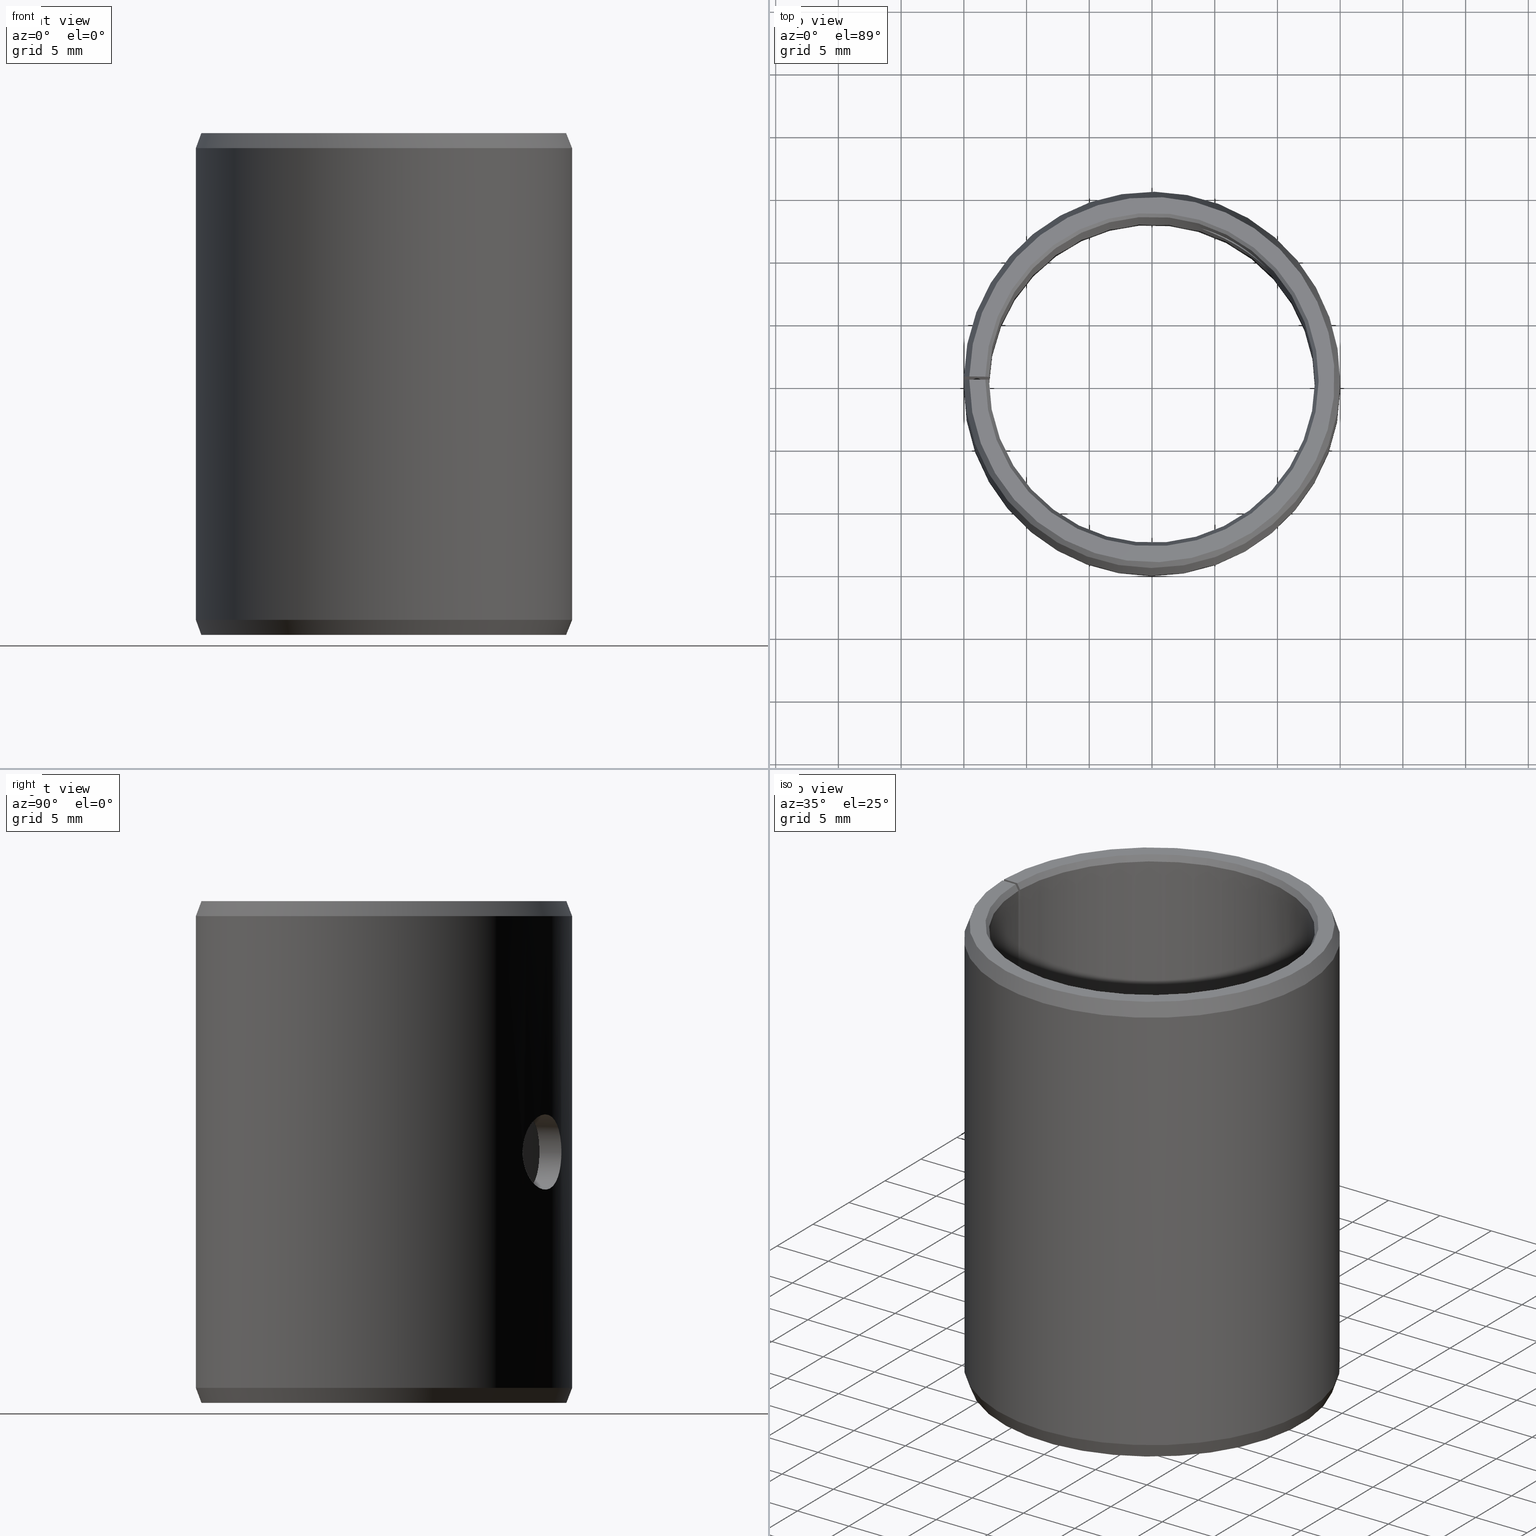
[diagram: canonical four-view strip — front | top / right | iso, engineering-drawing reading convention]
A machine part, canonical four-view strip (front | top / right | iso — engineering-drawing reading convention). The complete STEP part file that produces these views, byte-faithful:
ISO-10303-21;
HEADER;
FILE_DESCRIPTION(('STEP AP203'),'1');
FILE_NAME('440-POM2640LMB.stp','2016-09-20T23:04:43',(' '),(' '),'Spatial InterOp 3D',' ',' ');
FILE_SCHEMA(('CONFIG_CONTROL_DESIGN'));
ENDSEC;
DATA;
#1=DESIGN_CONTEXT('',#51,'design');
#2=APPLICATION_PROTOCOL_DEFINITION('INTERNATIONAL STANDARD','config_control_design',1994,#51);
#3=PRODUCT_CATEGORY_RELATIONSHIP('NONE','NONE',#52,#53);
#4=DATE_AND_TIME(#54,#55);
#5=DATE_TIME_ROLE('creation_date');
#6=DATE_TIME_ROLE('classification_date');
#7=PERSON_AND_ORGANIZATION_ROLE('creator');
#8=PERSON_AND_ORGANIZATION_ROLE('design_supplier');
#9=PERSON_AND_ORGANIZATION_ROLE('classification_officer');
#10=PERSON_AND_ORGANIZATION_ROLE('design_owner');
#11=APPROVAL_PERSON_ORGANIZATION(#56,#57,#58);
#12=APPROVAL_DATE_TIME(#4,#57);
#13=CC_DESIGN_APPROVAL(#57,(#59,#60,#61));
#14=CC_DESIGN_DATE_AND_TIME_ASSIGNMENT(#4,#5,(#61));
#15=CC_DESIGN_DATE_AND_TIME_ASSIGNMENT(#4,#6,(#59));
#16=CC_DESIGN_PERSON_AND_ORGANIZATION_ASSIGNMENT(#56,#10,(#62));
#17=CC_DESIGN_PERSON_AND_ORGANIZATION_ASSIGNMENT(#56,#7,(#61));
#18=CC_DESIGN_PERSON_AND_ORGANIZATION_ASSIGNMENT(#56,#7,(#60));
#19=CC_DESIGN_PERSON_AND_ORGANIZATION_ASSIGNMENT(#56,#8,(#60));
#20=CC_DESIGN_SECURITY_CLASSIFICATION(#59,(#60));
#21=CC_DESIGN_PERSON_AND_ORGANIZATION_ASSIGNMENT(#56,#9,(#59));
#22=SHAPE_DEFINITION_REPRESENTATION(#63,#64);
#23=DESIGN_CONTEXT('',#65,'design');
#24=APPLICATION_PROTOCOL_DEFINITION('INTERNATIONAL STANDARD','config_control_design',1994,#65);
#25=PRODUCT_CATEGORY_RELATIONSHIP('NONE','NONE',#66,#67);
#26=DATE_AND_TIME(#68,#69);
#27=DATE_TIME_ROLE('creation_date');
#28=DATE_TIME_ROLE('classification_date');
#29=PERSON_AND_ORGANIZATION_ROLE('creator');
#30=PERSON_AND_ORGANIZATION_ROLE('design_supplier');
#31=PERSON_AND_ORGANIZATION_ROLE('classification_officer');
#32=PERSON_AND_ORGANIZATION_ROLE('design_owner');
#33=APPROVAL_PERSON_ORGANIZATION(#70,#71,#72);
#34=APPROVAL_DATE_TIME(#26,#71);
#35=CC_DESIGN_APPROVAL(#71,(#73,#74,#75));
#36=CC_DESIGN_DATE_AND_TIME_ASSIGNMENT(#26,#27,(#75));
#37=CC_DESIGN_DATE_AND_TIME_ASSIGNMENT(#26,#28,(#73));
#38=CC_DESIGN_PERSON_AND_ORGANIZATION_ASSIGNMENT(#70,#32,(#76));
#39=CC_DESIGN_PERSON_AND_ORGANIZATION_ASSIGNMENT(#70,#29,(#75));
#40=CC_DESIGN_PERSON_AND_ORGANIZATION_ASSIGNMENT(#70,#29,(#74));
#41=CC_DESIGN_PERSON_AND_ORGANIZATION_ASSIGNMENT(#70,#30,(#74));
#42=CC_DESIGN_SECURITY_CLASSIFICATION(#73,(#74));
#43=CC_DESIGN_PERSON_AND_ORGANIZATION_ASSIGNMENT(#70,#31,(#73));
#44=CONTEXT_DEPENDENT_SHAPE_REPRESENTATION(#77,#78);
#45=SHAPE_DEFINITION_REPRESENTATION(#79,#80);
#46=SHAPE_REPRESENTATION_RELATIONSHIP('NONE','NONE',#80,#81);
#47= (GEOMETRIC_REPRESENTATION_CONTEXT(3)GLOBAL_UNCERTAINTY_ASSIGNED_CONTEXT((#84))GLOBAL_UNIT_ASSIGNED_CONTEXT((#86,#87,#88))REPRESENTATION_CONTEXT('NONE','WORKSPACE'));
#51=APPLICATION_CONTEXT('CONFIGURATION CONTROLLED 3D DESIGNS OF MECHANICAL PARTS AND ASSEMBLIES');
#52=PRODUCT_CATEGORY('part','NONE');
#53=PRODUCT_RELATED_PRODUCT_CATEGORY('detail',' ',(#62));
#54=CALENDAR_DATE(2016,21,8);
#55=LOCAL_TIME(1,4,43.0,#90);
#56=PERSON_AND_ORGANIZATION(#91,#92);
#57=APPROVAL(#93,'SOLID MODEL');
#58=APPROVAL_ROLE('APPROVED');
#59=SECURITY_CLASSIFICATION('','',#94);
#60=PRODUCT_DEFINITION_FORMATION_WITH_SPECIFIED_SOURCE(' ','NONE',#62,.NOT_KNOWN.);
#61=PRODUCT_DEFINITION('NONE','NONE',#60,#1);
#62=PRODUCT('','','PART--DESC',(#95));
#63=PRODUCT_DEFINITION_SHAPE('NONE','NONE',#61);
#64=SHAPE_REPRESENTATION('',(#96,#97),#98);
#65=APPLICATION_CONTEXT('CONFIGURATION CONTROLLED 3D DESIGNS OF MECHANICAL PARTS AND ASSEMBLIES');
#66=PRODUCT_CATEGORY('part','NONE');
#67=PRODUCT_RELATED_PRODUCT_CATEGORY('detail',' ',(#76));
#68=CALENDAR_DATE(2016,21,8);
#69=LOCAL_TIME(1,4,43.0,#99);
#70=PERSON_AND_ORGANIZATION(#100,#101);
#71=APPROVAL(#102,'SOLID MODEL');
#72=APPROVAL_ROLE('APPROVED');
#73=SECURITY_CLASSIFICATION('','',#103);
#74=PRODUCT_DEFINITION_FORMATION_WITH_SPECIFIED_SOURCE(' ','NONE',#76,.NOT_KNOWN.);
#75=PRODUCT_DEFINITION('440-POM2640LMB','440-POM2640LMB',#74,#23);
#76=PRODUCT('440-POM2640LMB','440-POM2640LMB','PART-440-POM2640LMB-DESC',(#104));
#77=(REPRESENTATION_RELATIONSHIP('','',#80,#64)REPRESENTATION_RELATIONSHIP_WITH_TRANSFORMATION(#107)SHAPE_REPRESENTATION_RELATIONSHIP());
#78=PRODUCT_DEFINITION_SHAPE('NAUO-PROD-DEF','NAUO-PROD-DEF',#109);
#79=PRODUCT_DEFINITION_SHAPE('NONE','NONE',#75);
#80=SHAPE_REPRESENTATION('440-POM2640LMB',(#96),#98);
#81=ADVANCED_BREP_SHAPE_REPRESENTATION('',(#110),#47);
#84=UNCERTAINTY_MEASURE_WITH_UNIT(LENGTH_MEASURE(1.0E-006),#86,'','');
#86= (CONVERSION_BASED_UNIT('METRE',#113)LENGTH_UNIT()NAMED_UNIT(#116));
#87= (NAMED_UNIT(#118)PLANE_ANGLE_UNIT()SI_UNIT($,.RADIAN.));
#88= (NAMED_UNIT(#118)SOLID_ANGLE_UNIT()SI_UNIT($,.STERADIAN.));
#90=COORDINATED_UNIVERSAL_TIME_OFFSET(1,0,.AHEAD.);
#91=PERSON('','UNSPECIFIED',$,$,$,$);
#92=ORGANIZATION('UNSPECIFIED','UNSPECIFIED','UNSPECIFIED');
#93=APPROVAL_STATUS('approved');
#94=SECURITY_CLASSIFICATION_LEVEL('unclassified');
#95=MECHANICAL_CONTEXT('',#51,'mechanical');
#96=AXIS2_PLACEMENT_3D('',#124,#125,#126);
#97=AXIS2_PLACEMENT_3D('',#127,#128,#129);
#98= (GEOMETRIC_REPRESENTATION_CONTEXT(3)GLOBAL_UNCERTAINTY_ASSIGNED_CONTEXT((#132))GLOBAL_UNIT_ASSIGNED_CONTEXT((#134,#135,#136))REPRESENTATION_CONTEXT('NONE','WORKSPACE'));
#99=COORDINATED_UNIVERSAL_TIME_OFFSET(1,0,.AHEAD.);
#100=PERSON('','UNSPECIFIED',$,$,$,$);
#101=ORGANIZATION('UNSPECIFIED','UNSPECIFIED','UNSPECIFIED');
#102=APPROVAL_STATUS('approved');
#103=SECURITY_CLASSIFICATION_LEVEL('unclassified');
#104=MECHANICAL_CONTEXT('',#65,'mechanical');
#107=ITEM_DEFINED_TRANSFORMATION('','',#96,#97);
#109=NEXT_ASSEMBLY_USAGE_OCCURRENCE('440-POM2640LMB','440-POM2640LMB','440-POM2640LMB',#61,#75,$);
#110=MANIFOLD_SOLID_BREP('',#138);
#113=LENGTH_MEASURE_WITH_UNIT(LENGTH_MEASURE(1.0),#139);
#116=DIMENSIONAL_EXPONENTS(1.0,0.0,0.0,0.0,0.0,0.0,0.0);
#118=DIMENSIONAL_EXPONENTS(0.0,0.0,0.0,0.0,0.0,0.0,0.0);
#124=CARTESIAN_POINT('',(0.0,0.0,0.0));
#125=DIRECTION('',(0.0,0.0,1.0));
#126=DIRECTION('',(1.0,0.0,0.0));
#127=CARTESIAN_POINT('',(0.0,0.0,0.0));
#128=DIRECTION('',(5.48707263966374E-016,-5.48707263966376E-016,1.0));
#129=DIRECTION('',(1.39349996950756E-015,1.0,5.48707263966375E-016));
#132=UNCERTAINTY_MEASURE_WITH_UNIT(LENGTH_MEASURE(1.0E-006),#134,'','');
#134= (CONVERSION_BASED_UNIT('METRE',#142)LENGTH_UNIT()NAMED_UNIT(#145));
#135= (NAMED_UNIT(#147)PLANE_ANGLE_UNIT()SI_UNIT($,.RADIAN.));
#136= (NAMED_UNIT(#147)SOLID_ANGLE_UNIT()SI_UNIT($,.STERADIAN.));
#138=CLOSED_SHELL('',(#153,#154,#155,#156,#157,#158,#159,#160,#161,#162,#163));
#139= (NAMED_UNIT(#116)LENGTH_UNIT()SI_UNIT($,.METRE.));
#142=LENGTH_MEASURE_WITH_UNIT(LENGTH_MEASURE(1.0),#165);
#145=DIMENSIONAL_EXPONENTS(1.0,0.0,0.0,0.0,0.0,0.0,0.0);
#147=DIMENSIONAL_EXPONENTS(0.0,0.0,0.0,0.0,0.0,0.0,0.0);
#153=ADVANCED_FACE('',(#166),#167,.F.);
#154=ADVANCED_FACE('',(#168),#169,.T.);
#155=ADVANCED_FACE('',(#170),#171,.T.);
#156=ADVANCED_FACE('',(#172),#173,.T.);
#157=ADVANCED_FACE('',(#174),#175,.T.);
#158=ADVANCED_FACE('',(#176),#177,.F.);
#159=ADVANCED_FACE('',(#178),#179,.T.);
#160=ADVANCED_FACE('',(#180),#181,.F.);
#161=ADVANCED_FACE('',(#182,#183),#184,.F.);
#162=ADVANCED_FACE('',(#185,#186),#187,.T.);
#163=ADVANCED_FACE('',(#188,#189),#190,.F.);
#165= (NAMED_UNIT(#145)LENGTH_UNIT()SI_UNIT($,.METRE.));
#166=FACE_OUTER_BOUND('',#192,.T.);
#167=CONICAL_SURFACE('',#193,0.013,0.523598775598298);
#168=FACE_OUTER_BOUND('',#194,.T.);
#169=PLANE('',#195);
#170=FACE_OUTER_BOUND('',#196,.T.);
#171=CONICAL_SURFACE('',#197,0.0145632357188806,0.349065850398869);
#172=FACE_OUTER_BOUND('',#198,.T.);
#173=CONICAL_SURFACE('',#199,0.015,0.349065850398866);
#174=FACE_OUTER_BOUND('',#200,.T.);
#175=PLANE('',#201);
#176=FACE_OUTER_BOUND('',#202,.T.);
#177=CONICAL_SURFACE('',#203,0.0132886751345948,0.523598775598298);
#178=FACE_OUTER_BOUND('',#204,.T.);
#179=PLANE('',#205);
#180=FACE_OUTER_BOUND('',#206,.T.);
#181=PLANE('',#207);
#182=FACE_OUTER_BOUND('',#208,.T.);
#183=FACE_BOUND('',#209,.T.);
#184=CYLINDRICAL_SURFACE('',#210,0.013);
#185=FACE_OUTER_BOUND('',#211,.T.);
#186=FACE_BOUND('',#212,.T.);
#187=CYLINDRICAL_SURFACE('',#213,0.015);
#188=FACE_OUTER_BOUND('',#214,.T.);
#189=FACE_OUTER_BOUND('',#215,.T.);
#190=CYLINDRICAL_SURFACE('',#216,0.003);
#192=EDGE_LOOP('',(#217,#218,#219,#220));
#193=AXIS2_PLACEMENT_3D('',#221,#222,#223);
#194=EDGE_LOOP('',(#224,#225,#226,#227));
#195=AXIS2_PLACEMENT_3D('',#228,#229,#230);
#196=EDGE_LOOP('',(#231,#232,#233,#234));
#197=AXIS2_PLACEMENT_3D('',#235,#236,#237);
#198=EDGE_LOOP('',(#238,#239,#240,#241));
#199=AXIS2_PLACEMENT_3D('',#242,#243,#244);
#200=EDGE_LOOP('',(#245,#246,#247,#248));
#201=AXIS2_PLACEMENT_3D('',#249,#250,#251);
#202=EDGE_LOOP('',(#252,#253,#254,#255));
#203=AXIS2_PLACEMENT_3D('',#256,#257,#258);
#204=EDGE_LOOP('',(#259,#260,#261,#262,#263,#264,#265,#266));
#205=AXIS2_PLACEMENT_3D('',#267,#268,#269);
#206=EDGE_LOOP('',(#270,#271,#272,#273,#274,#275,#276,#277));
#207=AXIS2_PLACEMENT_3D('',#278,#279,#280);
#208=EDGE_LOOP('',(#281,#282,#283,#284));
#209=EDGE_LOOP('',(#285));
#210=AXIS2_PLACEMENT_3D('',#286,#287,#288);
#211=EDGE_LOOP('',(#289,#290,#291,#292));
#212=EDGE_LOOP('',(#293));
#213=AXIS2_PLACEMENT_3D('',#294,#295,#296);
#214=EDGE_LOOP('',(#297));
#215=EDGE_LOOP('',(#298));
#216=AXIS2_PLACEMENT_3D('',#299,#300,#301);
#217=ORIENTED_EDGE('',*,*,#302,.T.);
#218=ORIENTED_EDGE('',*,*,#303,.F.);
#219=ORIENTED_EDGE('',*,*,#304,.F.);
#220=ORIENTED_EDGE('',*,*,#305,.T.);
#221=CARTESIAN_POINT('',(-6.93889390390723E-018,-6.93889390390723E-018,0.0005));
#222=DIRECTION('',(6.12323399573677E-017,-0.0,-1.0));
#223=DIRECTION('',(-1.0,0.0,-6.12323399573677E-017));
#224=ORIENTED_EDGE('',*,*,#306,.T.);
#225=ORIENTED_EDGE('',*,*,#307,.F.);
#226=ORIENTED_EDGE('',*,*,#302,.F.);
#227=ORIENTED_EDGE('',*,*,#308,.T.);
#228=CARTESIAN_POINT('',(0.000231919359461966,0.0132866512050067,-4.00091435630047E-020));
#229=DIRECTION('',(6.12323399573677E-017,0.0,-1.0));
#230=DIRECTION('',(-1.0,0.0,-6.12323399573677E-017));
#231=ORIENTED_EDGE('',*,*,#309,.T.);
#232=ORIENTED_EDGE('',*,*,#310,.F.);
#233=ORIENTED_EDGE('',*,*,#306,.F.);
#234=ORIENTED_EDGE('',*,*,#311,.T.);
#235=CARTESIAN_POINT('',(-6.93889390390723E-018,-6.93889390390723E-018,-9.02779661431517E-036));
#236=DIRECTION('',(-6.12323399573677E-017,0.0,1.0));
#237=DIRECTION('',(1.0,0.0,6.12323399573677E-017));
#238=ORIENTED_EDGE('',*,*,#312,.T.);
#239=ORIENTED_EDGE('',*,*,#313,.F.);
#240=ORIENTED_EDGE('',*,*,#314,.F.);
#241=ORIENTED_EDGE('',*,*,#315,.T.);
#242=CARTESIAN_POINT('',(-8.67361737988404E-018,-6.93889390390723E-018,0.0388));
#243=DIRECTION('',(6.12323399573677E-017,-0.0,-1.0));
#244=DIRECTION('',(-1.0,0.0,-6.12323399573677E-017));
#245=ORIENTED_EDGE('',*,*,#316,.T.);
#246=ORIENTED_EDGE('',*,*,#317,.T.);
#247=ORIENTED_EDGE('',*,*,#318,.F.);
#248=ORIENTED_EDGE('',*,*,#312,.F.);
#249=CARTESIAN_POINT('',(0.00025416350880786,0.0145610176675419,0.04));
#250=DIRECTION('',(-6.12323399573677E-017,0.0,1.0));
#251=DIRECTION('',(1.0,0.0,6.12323399573677E-017));
#252=ORIENTED_EDGE('',*,*,#319,.T.);
#253=ORIENTED_EDGE('',*,*,#320,.F.);
#254=ORIENTED_EDGE('',*,*,#317,.F.);
#255=ORIENTED_EDGE('',*,*,#321,.T.);
#256=CARTESIAN_POINT('',(-8.67361737988404E-018,-6.93889390390723E-018,0.04));
#257=DIRECTION('',(-6.12323399573677E-017,0.0,1.0));
#258=DIRECTION('',(1.0,0.0,6.12323399573677E-017));
#259=ORIENTED_EDGE('',*,*,#320,.T.);
#260=ORIENTED_EDGE('',*,*,#322,.T.);
#261=ORIENTED_EDGE('',*,*,#303,.T.);
#262=ORIENTED_EDGE('',*,*,#307,.T.);
#263=ORIENTED_EDGE('',*,*,#310,.T.);
#264=ORIENTED_EDGE('',*,*,#323,.T.);
#265=ORIENTED_EDGE('',*,*,#313,.T.);
#266=ORIENTED_EDGE('',*,*,#318,.T.);
#267=CARTESIAN_POINT('',(-6.93889390390723E-018,-0.014,0.0));
#268=DIRECTION('',(1.0,0.0,0.0));
#269=DIRECTION('',(0.0,0.0,-1.0));
#270=ORIENTED_EDGE('',*,*,#321,.F.);
#271=ORIENTED_EDGE('',*,*,#316,.F.);
#272=ORIENTED_EDGE('',*,*,#315,.F.);
#273=ORIENTED_EDGE('',*,*,#324,.F.);
#274=ORIENTED_EDGE('',*,*,#311,.F.);
#275=ORIENTED_EDGE('',*,*,#308,.F.);
#276=ORIENTED_EDGE('',*,*,#305,.F.);
#277=ORIENTED_EDGE('',*,*,#325,.F.);
#278=CARTESIAN_POINT('',(-0.000244333690121977,-0.0139978677321895,-1.49611235765866E-020));
#279=DIRECTION('',(0.999847695156391,-0.0174524064372836,-9.3259819610035E-021));
#280=DIRECTION('',(9.32598196100733E-021,1.0686516840419E-018,-1.0));
#281=ORIENTED_EDGE('',*,*,#304,.T.);
#282=ORIENTED_EDGE('',*,*,#322,.F.);
#283=ORIENTED_EDGE('',*,*,#319,.F.);
#284=ORIENTED_EDGE('',*,*,#325,.T.);
#285=ORIENTED_EDGE('',*,*,#326,.T.);
#286=CARTESIAN_POINT('',(-6.93889390390723E-018,-6.93889390390723E-018,0.0));
#287=DIRECTION('',(6.12323399573677E-017,0.0,-1.0));
#288=DIRECTION('',(-1.0,0.0,-6.12323399573677E-017));
#289=ORIENTED_EDGE('',*,*,#314,.T.);
#290=ORIENTED_EDGE('',*,*,#323,.F.);
#291=ORIENTED_EDGE('',*,*,#309,.F.);
#292=ORIENTED_EDGE('',*,*,#324,.T.);
#293=ORIENTED_EDGE('',*,*,#327,.T.);
#294=CARTESIAN_POINT('',(-6.93889390390723E-018,-6.93889390390723E-018,0.0));
#295=DIRECTION('',(6.12323399573677E-017,0.0,-1.0));
#296=DIRECTION('',(-1.0,0.0,-6.12323399573677E-017));
#297=ORIENTED_EDGE('',*,*,#326,.F.);
#298=ORIENTED_EDGE('',*,*,#327,.F.);
#299=CARTESIAN_POINT('',(0.0085716730070391,-0.00515038074907059,0.02));
#300=DIRECTION('',(0.85716730070391,-0.515038074907062,0.0));
#301=DIRECTION('',(-0.515038074907062,-0.85716730070391,0.0));
#302=EDGE_CURVE('',#328,#329,#330,.T.);
#303=EDGE_CURVE('',#331,#329,#332,.T.);
#304=EDGE_CURVE('',#333,#331,#334,.T.);
#305=EDGE_CURVE('',#333,#328,#335,.T.);
#306=EDGE_CURVE('',#336,#337,#338,.T.);
#307=EDGE_CURVE('',#329,#337,#339,.T.);
#308=EDGE_CURVE('',#328,#336,#340,.T.);
#309=EDGE_CURVE('',#341,#342,#343,.T.);
#310=EDGE_CURVE('',#337,#342,#344,.T.);
#311=EDGE_CURVE('',#336,#341,#345,.T.);
#312=EDGE_CURVE('',#346,#347,#348,.T.);
#313=EDGE_CURVE('',#349,#347,#350,.T.);
#314=EDGE_CURVE('',#351,#349,#352,.T.);
#315=EDGE_CURVE('',#351,#346,#353,.T.);
#316=EDGE_CURVE('',#346,#354,#355,.T.);
#317=EDGE_CURVE('',#354,#356,#357,.T.);
#318=EDGE_CURVE('',#347,#356,#358,.T.);
#319=EDGE_CURVE('',#359,#360,#361,.T.);
#320=EDGE_CURVE('',#356,#360,#362,.T.);
#321=EDGE_CURVE('',#354,#359,#363,.T.);
#322=EDGE_CURVE('',#360,#331,#364,.T.);
#323=EDGE_CURVE('',#342,#349,#365,.T.);
#324=EDGE_CURVE('',#341,#351,#366,.T.);
#325=EDGE_CURVE('',#359,#333,#367,.T.);
#326=EDGE_CURVE('',#368,#368,#369,.T.);
#327=EDGE_CURVE('',#370,#370,#371,.T.);
#328=VERTEX_POINT('',#372);
#329=VERTEX_POINT('',#373);
#330=CIRCLE('',#374,0.0132886751345948);
#331=VERTEX_POINT('',#375);
#332=LINE('',#376,#377);
#333=VERTEX_POINT('',#378);
#334=CIRCLE('',#379,0.013);
#335=LINE('',#380,#381);
#336=VERTEX_POINT('',#382);
#337=VERTEX_POINT('',#383);
#338=CIRCLE('',#384,0.0145632357188806);
#339=LINE('',#385,#386);
#340=LINE('',#387,#388);
#341=VERTEX_POINT('',#389);
#342=VERTEX_POINT('',#390);
#343=CIRCLE('',#391,0.015);
#344=LINE('',#392,#393);
#345=LINE('',#394,#395);
#346=VERTEX_POINT('',#396);
#347=VERTEX_POINT('',#397);
#348=CIRCLE('',#398,0.0145632357188806);
#349=VERTEX_POINT('',#399);
#350=LINE('',#400,#401);
#351=VERTEX_POINT('',#402);
#352=CIRCLE('',#403,0.015);
#353=LINE('',#404,#405);
#354=VERTEX_POINT('',#406);
#355=LINE('',#407,#408);
#356=VERTEX_POINT('',#409);
#357=CIRCLE('',#410,0.0132886751345948);
#358=LINE('',#411,#412);
#359=VERTEX_POINT('',#413);
#360=VERTEX_POINT('',#414);
#361=CIRCLE('',#415,0.013);
#362=LINE('',#416,#417);
#363=LINE('',#418,#419);
#364=LINE('',#420,#421);
#365=LINE('',#422,#423);
#366=LINE('',#424,#425);
#367=LINE('',#426,#427);
#368=VERTEX_POINT('',#428);
#369=B_SPLINE_CURVE_WITH_KNOTS('',3,(#429,#430,#431,#432,#433,#434,#435,#436,#437,#438,#439,#440,#441,#442,#443,#444,#445,#446,#447,#448,#449,#450,#451,#452,#453,#454,#455,#456,#457,#458,#459,#460,#461,#462,#463,#464,#465,#466,#467,#468,#469,#470,#471,#472,#473,#474,#475,#476,#477,#478,#479,#480,#481,#482,#483,#484,#485,#486,#487,#488,#489,#490),.UNSPECIFIED.,.T.,.F.,(2,2,2,2,2,2,2,2,2,2,2,2,2,2,2,2,2,2,2,2,2,2,2,2,2,2,2,2,2,2,2,2,2),(-0.000588115938674232,0.0,0.000588115938674229,0.00117623187734846,0.00176434781602269,0.00235246375469691,0.00294057969337114,0.00352869563204537,0.0041168115707196,0.00470492750939383,0.00529304344806806,0.00588115938674229,0.00646927532541651,0.00705739126409074,0.00764550720276497,0.0082336231414392,0.00882173908011343,0.00940985501878766,0.0105860868961361,0.0111742028348104,0.0117623187734846,0.0123504347121588,0.012938550650833,0.0141147825281815,0.0147028984668557,0.01529101440553,0.0158791303442042,0.0164672462828784,0.0170553622215526,0.0176434781602269,0.0182315940989011,0.0188197100375753,0.0194078259762496),.UNSPECIFIED.);
#370=VERTEX_POINT('',#491);
#371=B_SPLINE_CURVE_WITH_KNOTS('',3,(#492,#493,#494,#495,#496,#497,#498,#499,#500,#501,#502,#503,#504,#505,#506,#507,#508,#509,#510,#511,#512,#513,#514,#515,#516,#517,#518,#519,#520,#521,#522,#523,#524,#525,#526,#527,#528,#529,#530,#531,#532,#533,#534,#535,#536,#537,#538,#539,#540,#541,#542,#543,#544,#545,#546,#547,#548,#549,#550,#551,#552,#553,#554,#555),.UNSPECIFIED.,.T.,.F.,(2,2,2,2,2,2,2,2,2,2,2,2,2,2,2,2,2,2,2,2,2,2,2,2,2,2,2,2,2,2,2,2,2,2),(-0.000587616534640796,0.0,0.000587616534640802,0.0011752330692816,0.00176284960392241,0.00235046613856321,0.00293808267320401,0.00352569920784481,0.00411331574248561,0.00470093227712642,0.00528854881176722,0.00587616534640802,0.00646378188104882,0.00705139841568963,0.00763901495033043,0.00822663148497123,0.00881424801961203,0.00940186455425284,0.00998948108889364,0.0105770976235344,0.0111647141581752,0.011752330692816,0.0123399472274568,0.0129275637620976,0.0135151802967385,0.0141027968313793,0.0146904133660201,0.0152780299006609,0.0158656464353017,0.0164532629699425,0.0176284960392241,0.0182161125738649,0.0188037291085057,0.0193913456431465),.UNSPECIFIED.);
#372=CARTESIAN_POINT('',(0.000231919359461966,0.0132866512050067,-9.421925218728E-020));
#373=CARTESIAN_POINT('',(-6.93889390390723E-018,0.0132886751345948,-1.0842021724855E-019));
#374=AXIS2_PLACEMENT_3D('',#556,#557,#558);
#375=CARTESIAN_POINT('',(-6.93889390390723E-018,0.013,0.0005));
#376=CARTESIAN_POINT('',(-6.93889390390723E-018,0.013,0.0005));
#377=VECTOR('',#559,1.0);
#378=CARTESIAN_POINT('',(0.00022688128368468,0.0129980200370331,0.0005));
#379=AXIS2_PLACEMENT_3D('',#560,#561,#562);
#380=CARTESIAN_POINT('',(0.00022688128368468,0.0129980200370331,0.0005));
#381=VECTOR('',#563,1.0);
#382=CARTESIAN_POINT('',(0.000254163508807862,0.0145610176675419,1.55630263760809E-020));
#383=CARTESIAN_POINT('',(-6.93889390390723E-018,0.0145632357188805,0.0));
#384=AXIS2_PLACEMENT_3D('',#564,#565,#566);
#385=CARTESIAN_POINT('',(-6.93889390390723E-018,0.0132886751345948,-6.38916553586877E-020));
#386=VECTOR('',#567,1.0);
#387=CARTESIAN_POINT('',(0.000231919359461966,0.0132866512050067,-4.96906902974172E-020));
#388=VECTOR('',#568,1.0);
#389=CARTESIAN_POINT('',(0.000261786096559247,0.0149977154273459,0.0012));
#390=CARTESIAN_POINT('',(-6.93889390390723E-018,0.015,0.0012));
#391=AXIS2_PLACEMENT_3D('',#569,#570,#571);
#392=CARTESIAN_POINT('',(-6.93889390390723E-018,0.0145632357188805,0.0));
#393=VECTOR('',#572,1.0);
#394=CARTESIAN_POINT('',(0.000254163508807862,0.0145610176675419,1.55630263760809E-020));
#395=VECTOR('',#573,1.0);
#396=CARTESIAN_POINT('',(0.00025416350880786,0.0145610176675419,0.04));
#397=CARTESIAN_POINT('',(-8.67361737988404E-018,0.0145632357188805,0.04));
#398=AXIS2_PLACEMENT_3D('',#574,#575,#576);
#399=CARTESIAN_POINT('',(-8.67361737988404E-018,0.015,0.0388));
#400=CARTESIAN_POINT('',(-8.67361737988404E-018,0.015,0.0388));
#401=VECTOR('',#577,1.0);
#402=CARTESIAN_POINT('',(0.000261786096559245,0.0149977154273459,0.0388));
#403=AXIS2_PLACEMENT_3D('',#578,#579,#580);
#404=CARTESIAN_POINT('',(0.000261786096559245,0.0149977154273459,0.0388));
#405=VECTOR('',#581,1.0);
#406=CARTESIAN_POINT('',(0.000231919359461965,0.0132866512050067,0.04));
#407=CARTESIAN_POINT('',(0.00025416350880786,0.0145610176675419,0.04));
#408=VECTOR('',#582,1.0);
#409=CARTESIAN_POINT('',(-8.67361737988404E-018,0.0132886751345948,0.04));
#410=AXIS2_PLACEMENT_3D('',#583,#584,#585);
#411=CARTESIAN_POINT('',(-8.67361737988404E-018,0.0145632357188805,0.04));
#412=VECTOR('',#586,1.0);
#413=CARTESIAN_POINT('',(0.000226881283684678,0.0129980200370331,0.0395));
#414=CARTESIAN_POINT('',(-8.67361737988404E-018,0.013,0.0395));
#415=AXIS2_PLACEMENT_3D('',#587,#588,#589);
#416=CARTESIAN_POINT('',(-8.67361737988404E-018,0.0132886751345948,0.04));
#417=VECTOR('',#590,1.0);
#418=CARTESIAN_POINT('',(0.000231919359461965,0.0132866512050067,0.04));
#419=VECTOR('',#591,1.0);
#420=CARTESIAN_POINT('',(-8.67361737988404E-018,0.013,0.0395));
#421=VECTOR('',#592,1.0);
#422=CARTESIAN_POINT('',(-6.93889390390723E-018,0.015,0.0012));
#423=VECTOR('',#593,1.0);
#424=CARTESIAN_POINT('',(0.000261786096559247,0.0149977154273459,0.0012));
#425=VECTOR('',#594,1.0);
#426=CARTESIAN_POINT('',(0.000226881283684678,0.0129980200370331,0.0395));
#427=VECTOR('',#595,1.0);
#428=CARTESIAN_POINT('',(0.00929728979945005,-0.00908627549577064,0.02));
#429=CARTESIAN_POINT('',(0.00929728979945005,-0.00908627549577064,0.0201989157082192));
#430=CARTESIAN_POINT('',(0.00929728979945005,-0.00908627549577064,0.0198010842917807));
#431=CARTESIAN_POINT('',(0.00931139817799047,-0.00907190225823773,0.019605631631804));
#432=CARTESIAN_POINT('',(0.00936611503513822,-0.00901539992239173,0.019221324873248));
#433=CARTESIAN_POINT('',(0.00940741089454677,-0.00897254565877377,0.019030437384424));
#434=CARTESIAN_POINT('',(0.00951327012871062,-0.0088602283715376,0.0186674898008351));
#435=CARTESIAN_POINT('',(0.00957740332189922,-0.0087912253245028,0.0184954551620648));
#436=CARTESIAN_POINT('',(0.00972598011278978,-0.0086265640867105,0.0181698732400995));
#437=CARTESIAN_POINT('',(0.00981087209807339,-0.00853031745320233,0.0180162632339704));
#438=CARTESIAN_POINT('',(0.0099919722469823,-0.00831745260237164,0.0177405942034214));
#439=CARTESIAN_POINT('',(0.0100889367607007,-0.00820003975402716,0.0176166447005962));
#440=CARTESIAN_POINT('',(0.0102940741396144,-0.0079409907780558,0.017397289957311));
#441=CARTESIAN_POINT('',(0.0103999645079853,-0.00780214852596706,0.0173045227165322));
#442=CARTESIAN_POINT('',(0.0106132223267488,-0.00750948035696232,0.0171546624647469));
#443=CARTESIAN_POINT('',(0.0107221123297463,-0.00735349808481569,0.0170966796869884));
#444=CARTESIAN_POINT('',(0.0109367371952506,-0.0070303205060017,0.0170193388028959));
#445=CARTESIAN_POINT('',(0.0110410563306475,-0.00686539483584787,0.0170001205031187));
#446=CARTESIAN_POINT('',(0.0112434059858247,-0.00652873594094131,0.0169998806158374));
#447=CARTESIAN_POINT('',(0.011342264592137,-0.00635533014440286,0.0170195202487443));
#448=CARTESIAN_POINT('',(0.0115257807545716,-0.00601610881882536,0.0170963614482619));
#449=CARTESIAN_POINT('',(0.0116113371508997,-0.00584895268564022,0.0171532077614402));
#450=CARTESIAN_POINT('',(0.0117711627877684,-0.00552024678565886,0.0173041246378501));
#451=CARTESIAN_POINT('',(0.0118444431689657,-0.0053605870958801,0.0173977403931483));
#452=CARTESIAN_POINT('',(0.0119755046056225,-0.00506102928623115,0.0176145714787194));
#453=CARTESIAN_POINT('',(0.012034362076845,-0.00491874208379484,0.0177393545307701));
#454=CARTESIAN_POINT('',(0.0121382510397824,-0.00465647462988058,0.018017617591275));
#455=CARTESIAN_POINT('',(0.012182434411053,-0.00453878121964329,0.0181683366117685));
#456=CARTESIAN_POINT('',(0.0122579269671041,-0.00433075854886136,0.0184925910632962));
#457=CARTESIAN_POINT('',(0.0122894422274765,-0.00423975670597719,0.0186682525453787));
#458=CARTESIAN_POINT('',(0.0123387955993382,-0.0040939040470085,0.0190304908760893));
#459=CARTESIAN_POINT('',(0.0123569410576353,-0.00403826500986523,0.0192174821970901));
#460=CARTESIAN_POINT('',(0.0123813786812032,-0.00396270596239752,0.0196034326594096));
#461=CARTESIAN_POINT('',(0.0123874924780217,-0.00394335264896871,0.0198025887940825));
#462=CARTESIAN_POINT('',(0.0123875695430586,-0.00394311055444487,0.0203910415437104));
#463=CARTESIAN_POINT('',(0.0123635274019217,-0.0040207801800044,0.0207870972485671));
#464=CARTESIAN_POINT('',(0.0122898662597692,-0.00423852074260371,0.021329075208232));
#465=CARTESIAN_POINT('',(0.0122585331114914,-0.0043290530389067,0.0215044685264383));
#466=CARTESIAN_POINT('',(0.0121827826186984,-0.00453785653417317,0.021830500465307));
#467=CARTESIAN_POINT('',(0.0121386096230333,-0.00465550994438234,0.0219811095566304));
#468=CARTESIAN_POINT('',(0.0120354891288734,-0.00491595543627173,0.022257934631748));
#469=CARTESIAN_POINT('',(0.0119761210304075,-0.00505957065725904,0.0223842322748958));
#470=CARTESIAN_POINT('',(0.0118450905958072,-0.00535915655191067,0.0226013632147855));
#471=CARTESIAN_POINT('',(0.0117729474020318,-0.00551644761022646,0.0226938369059211));
#472=CARTESIAN_POINT('',(0.0115330479420145,-0.00601021998238986,0.0229214128598247));
#473=CARTESIAN_POINT('',(0.0113479694576776,-0.00635455411503189,0.0229997645561234));
#474=CARTESIAN_POINT('',(0.0110421525781504,-0.00686367675842615,0.0230001169298978));
#475=CARTESIAN_POINT('',(0.0109377657217392,-0.00702868534077101,0.0229808274273991));
#476=CARTESIAN_POINT('',(0.0107246227760454,-0.00734980291672841,0.0229044259993158));
#477=CARTESIAN_POINT('',(0.0106148363148817,-0.00750721629720439,0.0228463314850796));
#478=CARTESIAN_POINT('',(0.0104007708033993,-0.00780109051478684,0.0226961825354363));
#479=CARTESIAN_POINT('',(0.0102956638692547,-0.0079389218998833,0.0226041625979109));
#480=CARTESIAN_POINT('',(0.0100910426861032,-0.00819744063402513,0.0223858501036057));
#481=CARTESIAN_POINT('',(0.0099926803602708,-0.00831660125140312,0.0222603530005565));
#482=CARTESIAN_POINT('',(0.00981164539424319,-0.00852942740252874,0.0219850434850607));
#483=CARTESIAN_POINT('',(0.00972760916264427,-0.00862473856388133,0.0218333953533095));
#484=CARTESIAN_POINT('',(0.00957785955988763,-0.00879073953473379,0.0215058416463024));
#485=CARTESIAN_POINT('',(0.00951372034194745,-0.0088597426378961,0.0213336669464154));
#486=CARTESIAN_POINT('',(0.00940823397702634,-0.00897168032132588,0.0209727668274811));
#487=CARTESIAN_POINT('',(0.0093666760316395,-0.00901481882617789,0.0207819399640915));
#488=CARTESIAN_POINT('',(0.00931140238042744,-0.00907189969412532,0.0203950663535035));
#489=CARTESIAN_POINT('',(0.00929728979945005,-0.00908627549577064,0.0201989157082192));
#490=CARTESIAN_POINT('',(0.00929728979945005,-0.00908627549577064,0.0198010842917807));
#491=CARTESIAN_POINT('',(0.0110526208408191,-0.0101409847918776,0.02));
#492=CARTESIAN_POINT('',(0.0110526208408191,-0.0101409847918776,0.0198012673725046));
#493=CARTESIAN_POINT('',(0.0110526208408191,-0.0101409847918776,0.0201987326274954));
#494=CARTESIAN_POINT('',(0.0110661441139161,-0.0101263012203286,0.0203940413633142));
#495=CARTESIAN_POINT('',(0.0111186673414911,-0.0100686026093021,0.0207781235462783));
#496=CARTESIAN_POINT('',(0.0111583215329435,-0.0100248562161596,0.020968921723449));
#497=CARTESIAN_POINT('',(0.011260245013509,-0.00991023530613537,0.0213319627377527));
#498=CARTESIAN_POINT('',(0.0113220759873045,-0.00983985660964806,0.0215040687929627));
#499=CARTESIAN_POINT('',(0.0114656527355897,-0.00967217607922833,0.0218297854062279));
#500=CARTESIAN_POINT('',(0.0115479121824047,-0.00957419221474236,0.0219836030783359));
#501=CARTESIAN_POINT('',(0.0117238545099675,-0.00935792005557218,0.0222595365827685));
#502=CARTESIAN_POINT('',(0.0118182526797215,-0.00923883626886934,0.0223835420887977));
#503=CARTESIAN_POINT('',(0.0120185031215394,-0.00897679089219902,0.022602880477979));
#504=CARTESIAN_POINT('',(0.0121223364018056,-0.00883638446837001,0.0226957618543431));
#505=CARTESIAN_POINT('',(0.0123319305949029,-0.00854144121995166,0.0228455559270416));
#506=CARTESIAN_POINT('',(0.0124392169881467,-0.00838471659753903,0.0229034374048186));
#507=CARTESIAN_POINT('',(0.012651781915044,-0.00806039738929858,0.0229807062089283));
#508=CARTESIAN_POINT('',(0.0127555230335729,-0.00789525980669669,0.0229998832974126));
#509=CARTESIAN_POINT('',(0.0129576659984535,-0.00755892764535897,0.0230001156507429));
#510=CARTESIAN_POINT('',(0.0130569509676747,-0.00738601190610246,0.0229805191972809));
#511=CARTESIAN_POINT('',(0.0132423993281657,-0.00704812035104002,0.022903762695182));
#512=CARTESIAN_POINT('',(0.0133293801680797,-0.00688192668646147,0.022846977127654));
#513=CARTESIAN_POINT('',(0.0134928324286928,-0.00655566652860264,0.0226962608643489));
#514=CARTESIAN_POINT('',(0.0135684918850669,-0.00639708350852047,0.022602556187018));
#515=CARTESIAN_POINT('',(0.0137045018954718,-0.00610026862089857,0.0223856685479805));
#516=CARTESIAN_POINT('',(0.0137659407401233,-0.00595975803789766,0.0222611133610915));
#517=CARTESIAN_POINT('',(0.0138754321374853,-0.00570019502551569,0.0219823388769089));
#518=CARTESIAN_POINT('',(0.0139223267613886,-0.0055839903677347,0.0218314201349415));
#519=CARTESIAN_POINT('',(0.0140028241332208,-0.00537894480097353,0.0215070411983858));
#520=CARTESIAN_POINT('',(0.0140366705910815,-0.00528939892230085,0.0213314258827292));
#521=CARTESIAN_POINT('',(0.0140899356754166,-0.00514583082741675,0.0209688752054024));
#522=CARTESIAN_POINT('',(0.0141096151885063,-0.00509119918648758,0.0207818914102204));
#523=CARTESIAN_POINT('',(0.0141361453911068,-0.00501706521840291,0.0203963823799537));
#524=CARTESIAN_POINT('',(0.0141428220834141,-0.00499805797520601,0.020197264375322));
#525=CARTESIAN_POINT('',(0.0141428763282577,-0.00499790447790203,0.0198051765730898));
#526=CARTESIAN_POINT('',(0.0141364665055109,-0.00501616026688986,0.0196099736308847));
#527=CARTESIAN_POINT('',(0.0141099482873685,-0.00509027586799996,0.0192212999358219));
#528=CARTESIAN_POINT('',(0.0140901114935298,-0.00514534261378605,0.0190327793147828));
#529=CARTESIAN_POINT('',(0.0140371734196184,-0.00528805776262922,0.0186715446550953));
#530=CARTESIAN_POINT('',(0.0140035750700722,-0.00537700076206164,0.0184963475420745));
#531=CARTESIAN_POINT('',(0.0139226981309146,-0.00558307520044179,0.0181697186589999));
#532=CARTESIAN_POINT('',(0.0138758148263774,-0.00569923140804706,0.0180189879629557));
#533=CARTESIAN_POINT('',(0.0137673741833885,-0.00595641535094323,0.0177421896776879));
#534=CARTESIAN_POINT('',(0.0137052306033078,-0.00609863450952241,0.0176156756955914));
#535=CARTESIAN_POINT('',(0.0135691533363116,-0.00639568342761334,0.0173983182306449));
#536=CARTESIAN_POINT('',(0.0134947772756335,-0.00655166432844321,0.0173059147362386));
#537=CARTESIAN_POINT('',(0.0133313499186318,-0.00687811228016419,0.0171544658923266));
#538=CARTESIAN_POINT('',(0.0132432057355811,-0.0070465855792944,0.0170967490392105));
#539=CARTESIAN_POINT('',(0.0130584975127983,-0.0073832587107244,0.0170199452002982));
#540=CARTESIAN_POINT('',(0.0129605956689943,-0.00755395268651736,0.0170001397264852));
#541=CARTESIAN_POINT('',(0.012756591284186,-0.00789358094235602,0.016999861750353));
#542=CARTESIAN_POINT('',(0.0126527535711744,-0.00805883678712944,0.0170191537885664));
#543=CARTESIAN_POINT('',(0.0124418728210435,-0.00838074125596523,0.0170953876165608));
#544=CARTESIAN_POINT('',(0.012333686201756,-0.0085389243306955,0.017153342300093));
#545=CARTESIAN_POINT('',(0.0121231334067134,-0.00883530873550886,0.0173035174452321));
#546=CARTESIAN_POINT('',(0.0120202375293411,-0.00897445823801845,0.0173955124321165));
#547=CARTESIAN_POINT('',(0.011820715143269,-0.00923567563470097,0.0176134741760668));
#548=CARTESIAN_POINT('',(0.0117246360154034,-0.00935694055624952,0.0177393863243538));
#549=CARTESIAN_POINT('',(0.0114607913160129,-0.00968132054413715,0.0181527350545179));
#550=CARTESIAN_POINT('',(0.0113114601783638,-0.00985262464379353,0.0184864457033704));
#551=CARTESIAN_POINT('',(0.0111591807525907,-0.0100238974887794,0.0190276060429597));
#552=CARTESIAN_POINT('',(0.0111193224061637,-0.0100678810726159,0.0192179084384868));
#553=CARTESIAN_POINT('',(0.0110661475581575,-0.0101262993381411,0.0196051213694044));
#554=CARTESIAN_POINT('',(0.0110526208408191,-0.0101409847918776,0.0198012673725046));
#555=CARTESIAN_POINT('',(0.0110526208408191,-0.0101409847918776,0.0201987326274954));
#556=CARTESIAN_POINT('',(-6.93889390390723E-018,-6.93889390390723E-018,-1.0842021724855E-019));
#557=DIRECTION('',(6.12323399573677E-017,0.0,-1.0));
#558=DIRECTION('',(-1.0,0.0,-6.12323399573677E-017));
#559=DIRECTION('',(0.0,0.499999999999999,-0.866025403784439));
#560=CARTESIAN_POINT('',(-6.93889390390723E-018,-6.93889390390723E-018,0.0005));
#561=DIRECTION('',(6.12323399573677E-017,0.0,-1.0));
#562=DIRECTION('',(-1.0,0.0,-6.12323399573677E-017));
#563=DIRECTION('',(0.00872620321864171,0.499923847578191,-0.866025403784441));
#564=CARTESIAN_POINT('',(-6.93889390390723E-018,-6.93889390390723E-018,-9.02779661431517E-036));
#565=DIRECTION('',(6.12323399573677E-017,0.0,-1.0));
#566=DIRECTION('',(-1.0,0.0,-6.12323399573677E-017));
#567=DIRECTION('',(0.0,1.0,5.01283784752312E-017));
#568=DIRECTION('',(0.0174524064372836,0.999847695156391,5.11970301592731E-017));
#569=CARTESIAN_POINT('',(-6.93889390390723E-018,-6.93889390390723E-018,0.0012));
#570=DIRECTION('',(6.12323399573677E-017,0.0,-1.0));
#571=DIRECTION('',(-1.0,0.0,-6.12323399573677E-017));
#572=DIRECTION('',(0.0,0.342020143325671,0.939692620785908));
#573=DIRECTION('',(0.00596907455105759,0.341968052001231,0.939692620785908));
#574=CARTESIAN_POINT('',(-8.67361737988404E-018,-6.93889390390723E-018,0.04));
#575=DIRECTION('',(6.12323399573677E-017,0.0,-1.0));
#576=DIRECTION('',(-1.0,0.0,-6.12323399573677E-017));
#577=DIRECTION('',(0.0,-0.342020143325669,0.939692620785908));
#578=CARTESIAN_POINT('',(-8.67361737988404E-018,-6.93889390390723E-018,0.0388));
#579=DIRECTION('',(6.12323399573677E-017,0.0,-1.0));
#580=DIRECTION('',(-1.0,0.0,-6.12323399573677E-017));
#581=DIRECTION('',(-0.00596907455105755,-0.341968052001229,0.939692620785908));
#582=DIRECTION('',(-0.0174524064372836,-0.999847695156391,-1.0686516840419E-018));
#583=CARTESIAN_POINT('',(-8.67361737988404E-018,-6.93889390390723E-018,0.04));
#584=DIRECTION('',(6.12323399573677E-017,0.0,-1.0));
#585=DIRECTION('',(-1.0,0.0,-6.12323399573677E-017));
#586=DIRECTION('',(0.0,-1.0,0.0));
#587=CARTESIAN_POINT('',(-8.67361737988404E-018,-6.93889390390723E-018,0.0395));
#588=DIRECTION('',(6.12323399573677E-017,0.0,-1.0));
#589=DIRECTION('',(-1.0,0.0,-6.12323399573677E-017));
#590=DIRECTION('',(0.0,-0.499999999999999,-0.866025403784439));
#591=DIRECTION('',(-0.0087262032186417,-0.499923847578191,-0.866025403784441));
#592=DIRECTION('',(4.44800891276104E-017,1.77920356510441E-016,-1.0));
#593=DIRECTION('',(-4.61362626589576E-017,-9.22725253179153E-017,1.0));
#594=DIRECTION('',(-4.77489394794925E-017,-9.25219346419978E-017,1.0));
#595=DIRECTION('',(4.75877789518398E-017,1.78185625468589E-016,-1.0));
ENDSEC;
END-ISO-10303-21;
